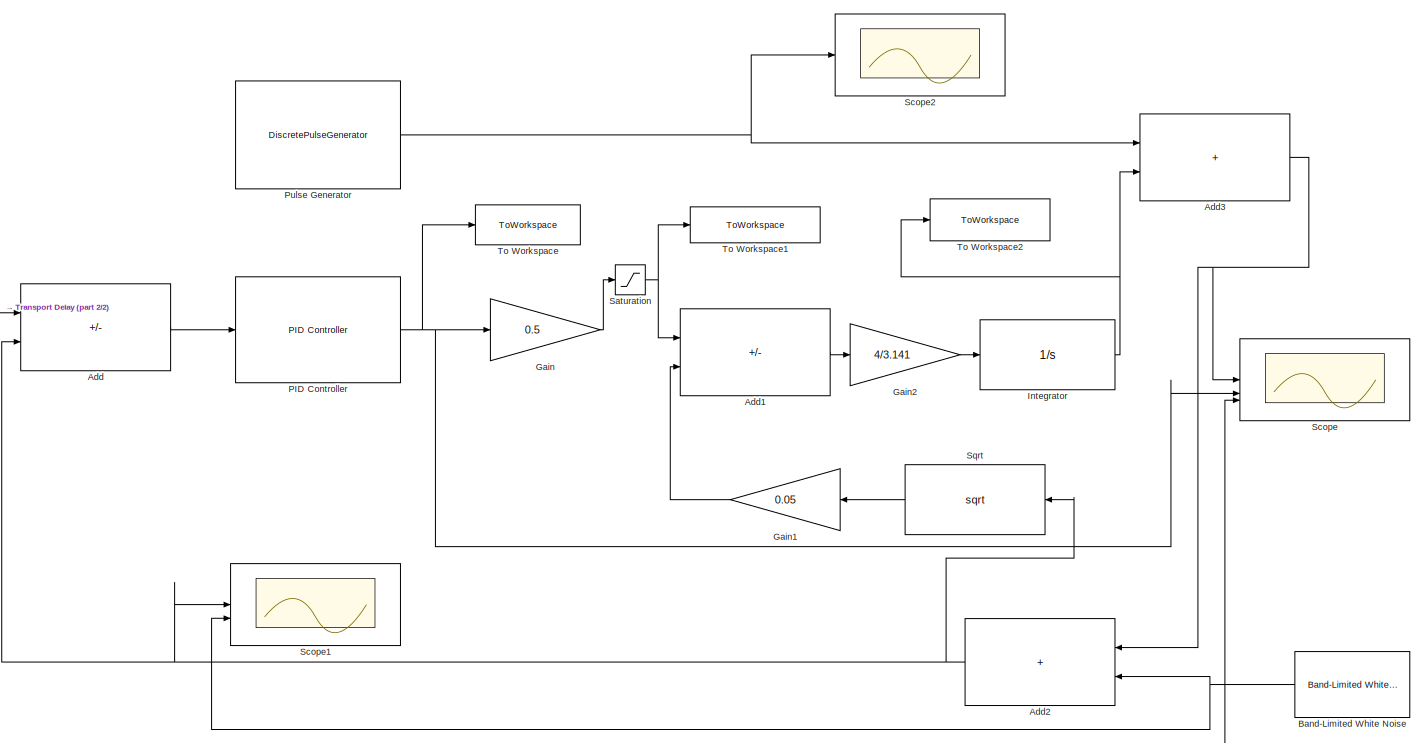
[diagram: root canvas - part 1/2, most of the canvas]
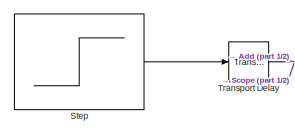
[diagram: root canvas - part 2/2, middle left region]
MODEL slx_91c1b2f0a01a
KIND model
CONFIG AbsTol = auto
CONFIG EnableMultiTasking = off
CONFIG FixedStep = auto
CONFIG MaxStep = 0.01
CONFIG MinStep = auto
CONFIG RelTol = 1e-5
CONFIG SampleTimeConstraint = Unconstrained
CONFIG SolverName = ode23tb
CONFIG StartTime = 0.0
CONFIG StopTime = 50
BLOCK [Sum] Add
  IconShape = rectangular
  Inputs = +-
BLOCK [Sum] Add1
  IconShape = rectangular
  Inputs = +-
BLOCK [Sum] Add2
  IconShape = rectangular
  NameLocation = top
BLOCK [Sum] Add3
  IconShape = rectangular
BLOCK [Reference] Band-Limited White Noise  REF=simulink/Sources/Band-Limited
White Noise
  NameLocation = top
  SourceBlock = simulink/Sources/Band-Limited\nWhite Noise
  SourceType = Band-Limited White Noise.
BLOCK [Gain] Gain
  Gain = 0.5
BLOCK [Gain] Gain1
  Gain = 0.05
  NameLocation = top
BLOCK [Gain] Gain2
  Gain = 4/3.141
BLOCK [Integrator] Integrator
  InitialCondition = 250
BLOCK [Reference] PID Controller  REF=slpidlib/PID Controller
  LibrarySourceBlock = simulink/Continuous/PID Controller
  SourceBlock = slpidlib/PID Controller
  SourceType = PID 1dof
BLOCK [DiscretePulseGenerator] Pulse Generator
  Amplitude = -60
  Period = 16
  PhaseDelay = 8
  PulseType = Time based
  PulseWidth = 5
BLOCK [Saturate] Saturation
  LowerLimit = 0
  UpperLimit = 0.25
BLOCK [Scope] Scope
  ActiveDisplayYMaximum = 1694.3981355950921
  ActiveDisplayYMinimum = -990.87245455823836
  Floating = off
  GraphicalSettings = {"Style":{"BackgroundColor":[0.12941176470588237,0.12941176470588237,0.12941176470588237],"AxesColor":[0.07058823529411765,0.07058823529411765,0.07058823529411765],"LabelsColor":[0.8509803921568627,0.8509803921568627,0.8509803921568627],"PreserveColors":false,"Visible":[true,true,true,true,true,true,true],"LineStyle":["-","-","-","-","-","-","-"],"LineWidth":[1.5,1.5,1.5,1.5,1.5,1.5,1.5],"BarWidth...<+3215ch>
  MultipleDisplayCache = [{"MaxYLimMag":1694.3981355950921,"MaxYLimReal":1694.3981355950921,"MinYLimMag":0,"MinYLimReal":-990.87245455823836,"PlotAsMagnitudePhase":false,"ShowGrid":true,"ShowLegend":true,"Title":"%<SignalLabel>","YLabel":""}]
  NumInputPorts = 3
  OpenAtSimulationStart = on
  ScopeFrameLocation = window
  ShowLegend = on
  Visible = on
  WasSavedAsWebScope = on
  WindowPosition = [8.000000,44.000000,1520.000000,777.000000,]
BLOCK [Scope] Scope1
  ActiveDisplayYMaximum = 2316.79330926737
  ActiveDisplayYMinimum = -1175.064169753357
  DataLoggingVariableName = ScopeData1
  Floating = off
  GraphicalSettings = {"Style":{"BackgroundColor":[0.12941176470588237,0.12941176470588237,0.12941176470588237],"AxesColor":[0.07058823529411765,0.07058823529411765,0.07058823529411765],"LabelsColor":[0.8509803921568627,0.8509803921568627,0.8509803921568627],"PreserveColors":false,"Visible":[true,true,true,true,true,true,true],"LineStyle":["-","-","-","-","-","-","-"],"LineWidth":[1.5,1.5,1.5,1.5,1.5,1.5,1.5],"BarWidth...<+3210ch>
  MultipleDisplayCache = [{"MaxYLimMag":621.27151387272943,"MaxYLimReal":2316.79330926737,"MinYLimMag":0,"MinYLimReal":-1175.064169753357,"PlotAsMagnitudePhase":false,"ShowGrid":true,"ShowLegend":true,"Title":"%<SignalLabel>","YLabel":""}]
  NumInputPorts = 2
  OpenAtSimulationStart = on
  ScopeFrameLocation = window
  ShowLegend = on
  Visible = on
  WasSavedAsWebScope = on
  WindowPosition = [8.000000,44.000000,1520.000000,777.000000,]
BLOCK [Scope] Scope2
  ActiveDisplayYMaximum = 495.73512168287982
  ActiveDisplayYMinimum = -268.51506671964938
  DataLoggingVariableName = ScopeData2
  Floating = off
  GraphicalSettings = {"Style":{"BackgroundColor":[0.12941176470588237,0.12941176470588237,0.12941176470588237],"AxesColor":[0.07058823529411765,0.07058823529411765,0.07058823529411765],"LabelsColor":[0.8509803921568627,0.8509803921568627,0.8509803921568627],"PreserveColors":false,"Visible":[true,true,true,true,true,true,true],"LineStyle":["-","-","-","-","-","-","-"],"LineWidth":[1.5,1.5,1.5,1.5,1.5,1.5,1.5],"BarWidth...<+3166ch>
  MultipleDisplayCache = [{"MaxYLimMag":67.5,"MaxYLimReal":495.73512168287982,"MinYLimMag":0,"MinYLimReal":-268.51506671964938,"PlotAsMagnitudePhase":false,"ShowGrid":true,"ShowLegend":true,"Title":"%<SignalLabel>","YLabel":""}]
  NumInputPorts = 1
  OpenAtSimulationStart = on
  ScopeFrameLocation = window
  ShowLegend = on
  Visible = on
  WasSavedAsWebScope = on
  WindowPosition = [8.000000,44.000000,1520.000000,777.000000,]
BLOCK [Sqrt] Sqrt
  NameLocation = top
BLOCK [Step] Step
  After = 500
  SampleTime = 0
BLOCK [ToWorkspace] To Workspace
  FixptAsFi = on
  MaxDataPoints = inf
  SampleTime = -1
  Save2DSignal = 2-D array (concatenate along first dimension)
  VariableName = controller_output
BLOCK [ToWorkspace] To Workspace1
  FixptAsFi = on
  MaxDataPoints = inf
  SampleTime = -1
  Save2DSignal = 2-D array (concatenate along first dimension)
  VariableName = valve_position
BLOCK [ToWorkspace] To Workspace2
  FixptAsFi = on
  MaxDataPoints = inf
  SampleTime = -1
  Save2DSignal = 2-D array (concatenate along first dimension)
  VariableName = water_level
BLOCK [TransportDelay] Transport Delay
LINE Add1:1 -> Gain2:1
NET Add2:1 -> Add:2, Scope1:1, Sqrt:1
NET Add3:1 -> Add2:1, Scope:1
LINE Add:1 -> PID Controller:1
NET Band-Limited White Noise:1 -> Add2:2, Scope1:2
LINE Gain1:1 -> Add1:2
LINE Gain2:1 -> Integrator:1
LINE Gain:1 -> Saturation:1
NET Integrator:1 -> Add3:2, To Workspace2:1
NET PID Controller:1 -> Gain:1, Scope:2, To Workspace:1
NET Pulse Generator:1 -> Add3:1, Scope2:1
NET Saturation:1 -> Add1:1, To Workspace1:1
LINE Sqrt:1 -> Gain1:1
LINE Step:1 -> Transport Delay:1
NET Transport Delay:1 -> Add:1, Scope:3
note: NET lines group one-source signal fan-out (src -> all destinations, sorted); 1:1 wires keep LINE
